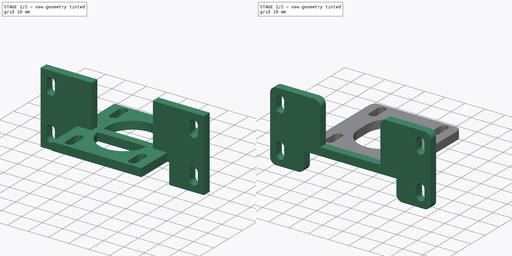
[diagram: build sequence overview — one tinted view per stage of 2, left to right]
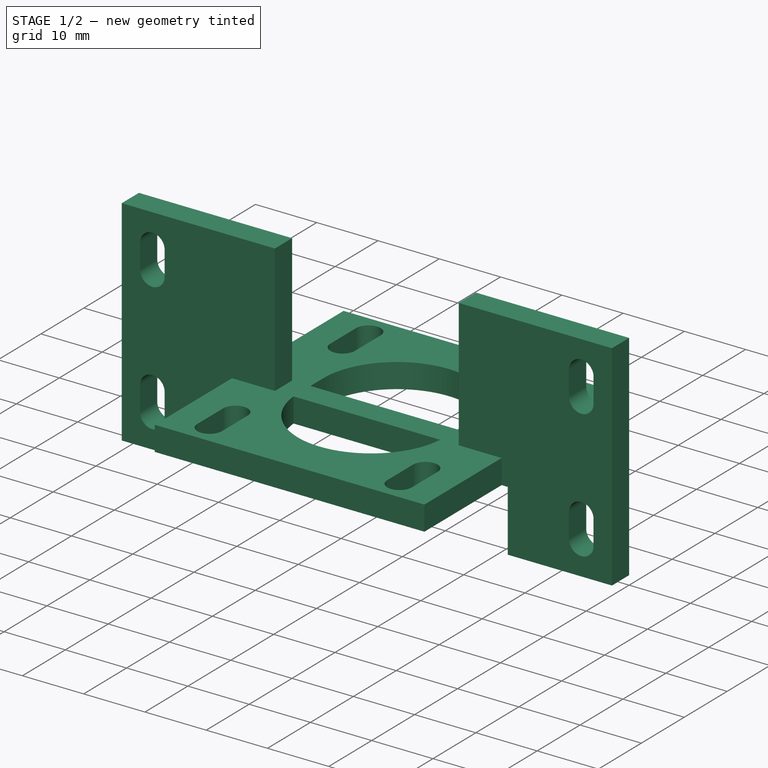
[diagram: stage 1 of 2 — iso view after this stage's code; geometry added in this stage tinted green]
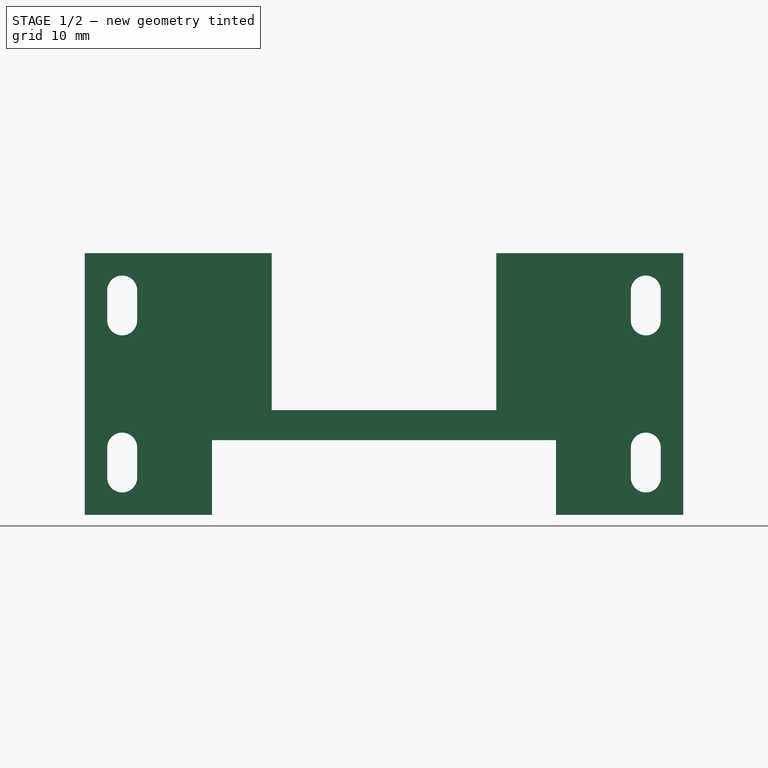
[diagram: stage 1 of 2 — front view after this stage's code; geometry added in this stage tinted green]
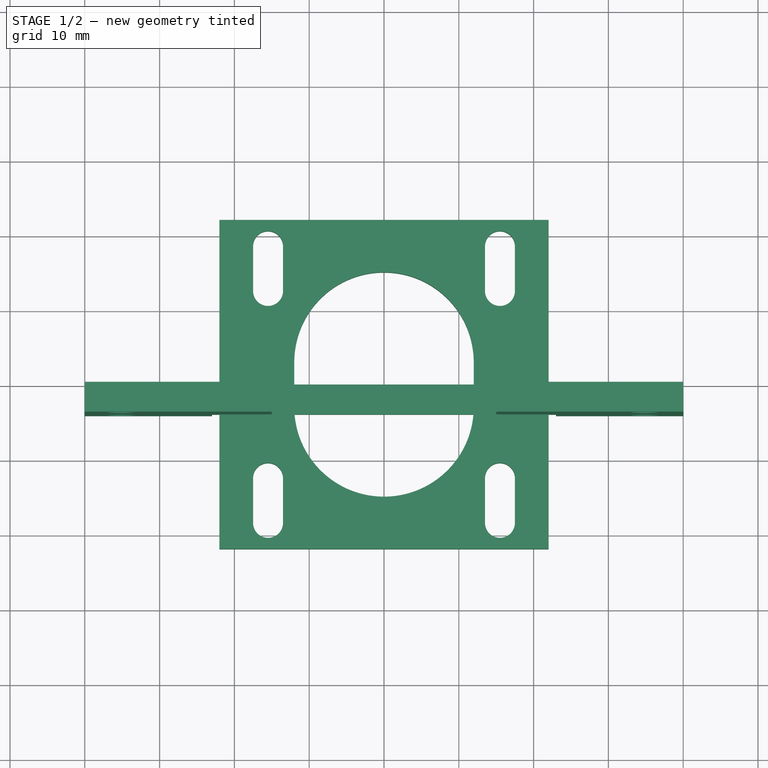
[diagram: stage 1 of 2 — top view after this stage's code; geometry added in this stage tinted green]
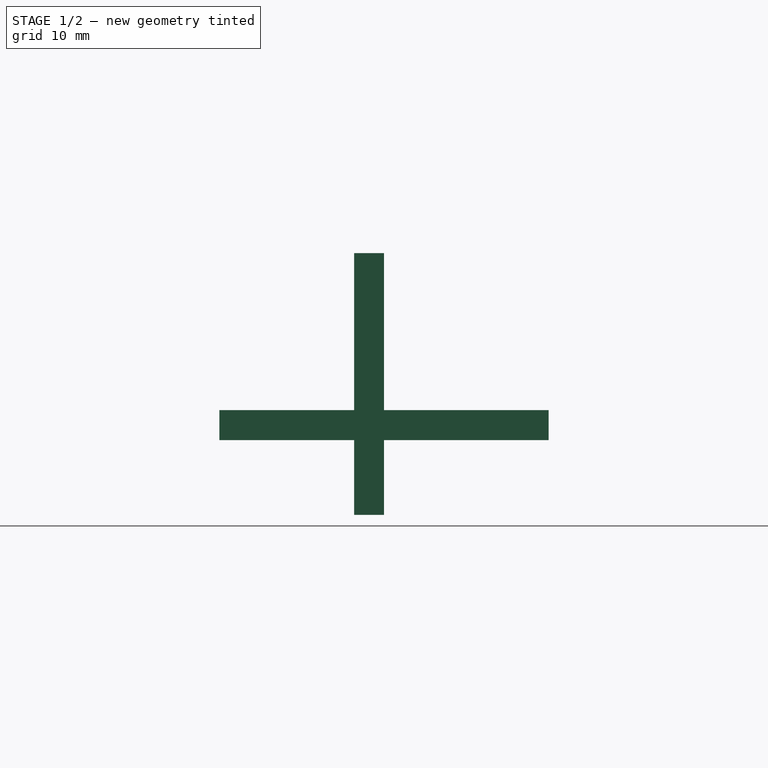
[diagram: stage 1 of 2 — right view after this stage's code; geometry added in this stage tinted green]
FCSTD DOCUMENT  (FreeCAD 0.19R24291 (Git))
Label: MotorFixing
License: All rights reserved
LicenseURL: http://en.wikipedia.org/wiki/All_rights_reserved
objects: Sketcher::SketchObject×2, PartDesign::Pad×2, PartDesign::Body×2, Part::MultiFuse×1, Part::Fillet×1
note: 10 computed .brp shape members not serialized (recipe doc carries the construction recipe); baked Part::Feature solids carry a one-line shape summary decoded from their .brp

FEATURE [Sketcher::SketchObject] Sketch
  FullyConstrained = false
  MapMode = 5
  Support = -> [XY_Plane]
  sketch-geometry (24):
    g0: LineSegment StartX=-22 StartY=22 StartZ=0 EndX=22 EndY=22 EndZ=0
    g1: LineSegment StartX=22 StartY=22 StartZ=0 EndX=22 EndY=-22 EndZ=0
    g2: LineSegment StartX=22 StartY=-22 StartZ=0 EndX=-22 EndY=-22 EndZ=0
    g3: LineSegment StartX=-22 StartY=-22 StartZ=0 EndX=-22 EndY=22 EndZ=0
    g4: ArcOfCircle CenterX=-15.5 CenterY=18.5 CenterZ=0 NormalX=0 NormalY=0 NormalZ=1 AngleXU=0 Radius=2 StartAngle=1e-16 EndAngle=3.14159
    g5: ArcOfCircle CenterX=-15.5 CenterY=12.5 CenterZ=0 NormalX=0 NormalY=0 NormalZ=1 AngleXU=0 Radius=2 StartAngle=3.14159 EndAngle=6.28319
    g6: LineSegment StartX=-17.5 StartY=18.5 StartZ=0 EndX=-17.5 EndY=12.5 EndZ=0
    g7: LineSegment StartX=-13.5 StartY=18.5 StartZ=0 EndX=-13.5 EndY=12.5 EndZ=0
    g8: ArcOfCircle CenterX=-15.5 CenterY=-12.5 CenterZ=0 NormalX=0 NormalY=0 NormalZ=1 AngleXU=0 Radius=2 StartAngle=1e-16 EndAngle=3.14159
    g9: ArcOfCircle CenterX=-15.5 CenterY=-18.5 CenterZ=0 NormalX=0 NormalY=0 NormalZ=1 AngleXU=0 Radius=2 StartAngle=3.14159 EndAngle=6.28319
    g10: LineSegment StartX=-17.5 StartY=-12.5 StartZ=0 EndX=-17.5 EndY=-18.5 EndZ=0
    g11: LineSegment StartX=-13.5 StartY=-12.5 StartZ=0 EndX=-13.5 EndY=-18.5 EndZ=0
    g12: ArcOfCircle CenterX=15.5 CenterY=18.5 CenterZ=0 NormalX=0 NormalY=0 NormalZ=1 AngleXU=0 Radius=2 StartAngle=5e-16 EndAngle=3.14159
    g13: ArcOfCircle CenterX=15.5 CenterY=12.5 CenterZ=0 NormalX=0 NormalY=0 NormalZ=1 AngleXU=0 Radius=2 StartAngle=3.14159 EndAngle=6.28319
    g14: LineSegment StartX=13.5 StartY=18.5 StartZ=0 EndX=13.5 EndY=12.5 EndZ=0
    g15: LineSegment StartX=17.5 StartY=18.5 StartZ=0 EndX=17.5 EndY=12.5 EndZ=0
    g16: ArcOfCircle CenterX=15.5 CenterY=-12.5 CenterZ=0 NormalX=0 NormalY=0 NormalZ=1 AngleXU=0 Radius=2 StartAngle=1e-16 EndAngle=3.14159
    g17: ArcOfCircle CenterX=15.5 CenterY=-18.5 CenterZ=0 NormalX=0 NormalY=0 NormalZ=1 AngleXU=0 Radius=2 StartAngle=3.14159 EndAngle=6.28319
    g18: LineSegment StartX=13.5 StartY=-12.5 StartZ=0 EndX=13.5 EndY=-18.5 EndZ=0
    g19: LineSegment StartX=17.5 StartY=-12.5 StartZ=0 EndX=17.5 EndY=-18.5 EndZ=0
    g20: ArcOfCircle CenterX=0 CenterY=3 CenterZ=0 NormalX=0 NormalY=0 NormalZ=1 AngleXU=0 Radius=12 StartAngle=1e-16 EndAngle=3.14159
    g21: ArcOfCircle CenterX=7e-16 CenterY=-3 CenterZ=0 NormalX=0 NormalY=0 NormalZ=1 AngleXU=0 Radius=12 StartAngle=3.14159 EndAngle=6.28319
    g22: LineSegment StartX=-12 StartY=3 StartZ=0 EndX=-12 EndY=-3 EndZ=0
    g23: LineSegment StartX=12 StartY=3 StartZ=0 EndX=12 EndY=-3 EndZ=0
  constraints (52):
    c: Coincident(g0,g1)
    c: Coincident(g1,g2)
    c: Coincident(g2,g3)
    c: Coincident(g3,g0)
    c: Horizontal(g0)
    c: Horizontal(g2)
    c: Vertical(g1)
    c: Vertical(g3)
    c: Tangent(g4,g7) = 1.5708
    c: Tangent(g4,g6) = -1.5708
    c: Tangent(g6,g5) = -1.5708
    c: Tangent(g7,g5) = 1.5708
    c: Vertical(g6)
    c: Equal(g4,g5)
    c: DistanceX(g4,g4) = 4
    c: DistanceY(g7,g7) = 6
    c: Tangent(g8,g11) = 1.5708
    c: Tangent(g8,g10) = -1.5708
    c: Tangent(g10,g9) = -1.5708
    c: Tangent(g11,g9) = 1.5708
    c: Vertical(g10)
    c: Equal(g8,g9)
    c: Equal(g4,g8) = 4
    c: Equal(g7,g11) = 6
    c: Tangent(g12,g15) = 1.5708
    c: Tangent(g12,g14) = -1.5708
    c: Tangent(g14,g13) = -1.5708
    c: Tangent(g15,g13) = 1.5708
    c: Vertical(g14)
    c: Equal(g12,g13)
    c: Equal(g4,g12) = 4
    c: Equal(g7,g15) = 6
    c: Tangent(g16,g19) = 1.5708
    c: Tangent(g16,g18) = -1.5708
    c: Tangent(g18,g17) = -1.5708
    c: Tangent(g19,g17) = 1.5708
    c: Vertical(g18)
    c: Equal(g16,g17)
    c: Equal(g12,g16) = 4
    c: Equal(g15,g19) = 6
    c: DistanceY(g1,g1) = 44
    c: DistanceX(g0,g0) = 44
    c: Tangent(g20,g23) = 1.5708
    c: Tangent(g20,g22) = -1.5708
    c: Tangent(g22,g21) = -1.5708
    c: Tangent(g23,g21) = 1.5708
    c: Vertical(g22)
    c: Equal(g20,g21)
    c: DistanceY(g23,g23) = 6
    c: DistanceX(g20,g20) = 24
    c: DistanceX(g20,g-1) = 0
    c: DistanceY(g-1,g20) = 3
FEATURE [PartDesign::Pad] Pad
  Direction = (1,1,1)
  Length = 4
  Length2 = 100
  Profile = -> Sketch
  Type = 0
FEATURE [PartDesign::Body] Body
  Group = -> [Sketch,Pad]
  Origin = -> Origin
  Tip = -> Pad
FEATURE [Sketcher::SketchObject] Sketch001
  FullyConstrained = true
  MapMode = 5
  Placement = pos=(0,0,0) rot=(1,0,0;1.5708rad)
  Support = -> [XZ_Plane001]
  expr: Constraints[74] = .Constraints.AbstandLoch
  expr: Constraints[72] = .Constraints.AbstandLoch
  expr: Constraints[65] = .Constraints.AbstandLoch
  expr: Constraints[62] = .Constraints.Radius
  expr: .Constraints.BreiteHinten = (.Constraints.Breite - 46mm) / 2
  expr: Constraints[64] = .Constraints.Radius
  expr: Constraints[35] = .Constraints.BreiteHinten
  expr: Constraints[60] = .Constraints.LängeLoch
  expr: Constraints[73] = .Constraints.AbstandLoch
  expr: Constraints[59] = .Constraints.LängeLoch
  expr: Constraints[33] = .Constraints.LängeHinten
  expr: Constraints[71] = .Constraints.AbstandLoch
  expr: Constraints[63] = .Constraints.Radius
  expr: Constraints[61] = .Constraints.LängeLoch
  expr: Constraints[31] = .Constraints.LängeSteg
  expr: Constraints[17] = .Constraints.Steg
  expr: Constraints[70] = .Constraints.AbstandLoch
  expr: Constraints[75] = .Constraints.AbstandLoch
  expr: Constraints[14] = .Constraints.Breite / 2
  sketch-geometry (28):
    g0: LineSegment StartX=40 StartY=-10 StartZ=0 EndX=40 EndY=25 EndZ=0
    g1: LineSegment StartX=40 StartY=25 StartZ=0 EndX=15 EndY=25 EndZ=0
    g2: LineSegment StartX=15 StartY=25 StartZ=0 EndX=15 EndY=4 EndZ=0
    g3: LineSegment StartX=15 StartY=4 StartZ=0 EndX=-15 EndY=4 EndZ=0
    g4: LineSegment StartX=-15 StartY=4 StartZ=0 EndX=-15 EndY=25 EndZ=0
    g5: LineSegment StartX=-15 StartY=25 StartZ=0 EndX=-40 EndY=25 EndZ=0
    g6: LineSegment StartX=-40 StartY=25 StartZ=0 EndX=-40 EndY=-10 EndZ=0
    g7: LineSegment StartX=-40 StartY=-10 StartZ=0 EndX=-23 EndY=-10 EndZ=0
    g8: LineSegment StartX=-23 StartY=-10 StartZ=0 EndX=-23 EndY=0 EndZ=0
    g9: LineSegment StartX=-23 StartY=0 StartZ=0 EndX=23 EndY=0 EndZ=0
    g10: LineSegment StartX=23 StartY=0 StartZ=0 EndX=23 EndY=-10 EndZ=0
    g11: LineSegment StartX=23 StartY=-10 StartZ=0 EndX=40 EndY=-10 EndZ=0
    g12: ArcOfCircle CenterX=-35 CenterY=20 CenterZ=0 NormalX=0 NormalY=0 NormalZ=1 AngleXU=0 Radius=2 StartAngle=-9e-16 EndAngle=3.14159
    g13: ArcOfCircle CenterX=-35 CenterY=16 CenterZ=0 NormalX=0 NormalY=0 NormalZ=1 AngleXU=0 Radius=2 StartAngle=3.14159 EndAngle=6.28319
    g14: LineSegment StartX=-37 StartY=20 StartZ=0 EndX=-37 EndY=16 EndZ=0
    g15: LineSegment StartX=-33 StartY=20 StartZ=0 EndX=-33 EndY=16 EndZ=0
    g16: ArcOfCircle CenterX=-35 CenterY=-1 CenterZ=0 NormalX=0 NormalY=0 NormalZ=1 AngleXU=0 Radius=2 StartAngle=1e-16 EndAngle=3.14159
    g17: ArcOfCircle CenterX=-35 CenterY=-5 CenterZ=0 NormalX=0 NormalY=0 NormalZ=1 AngleXU=0 Radius=2 StartAngle=3.14159 EndAngle=6.28319
    g18: LineSegment StartX=-37 StartY=-1 StartZ=0 EndX=-37 EndY=-5 EndZ=0
    g19: LineSegment StartX=-33 StartY=-1 StartZ=0 EndX=-33 EndY=-5 EndZ=0
    g20: ArcOfCircle CenterX=35 CenterY=20 CenterZ=0 NormalX=0 NormalY=0 NormalZ=1 AngleXU=0 Radius=2 StartAngle=-1.33e-14 EndAngle=3.14159
    g21: ArcOfCircle CenterX=35 CenterY=16 CenterZ=0 NormalX=0 NormalY=0 NormalZ=1 AngleXU=0 Radius=2 StartAngle=3.14159 EndAngle=6.28319
    g22: LineSegment StartX=33 StartY=20 StartZ=0 EndX=33 EndY=16 EndZ=0
    g23: LineSegment StartX=37 StartY=20 StartZ=0 EndX=37 EndY=16 EndZ=0
    g24: ArcOfCircle CenterX=35 CenterY=-1 CenterZ=0 NormalX=0 NormalY=0 NormalZ=1 AngleXU=0 Radius=2 StartAngle=1e-16 EndAngle=3.14159
    g25: ArcOfCircle CenterX=35 CenterY=-5 CenterZ=0 NormalX=0 NormalY=0 NormalZ=1 AngleXU=0 Radius=2 StartAngle=3.14159 EndAngle=6.28319
    g26: LineSegment StartX=33 StartY=-1 StartZ=0 EndX=33 EndY=-5 EndZ=0
    g27: LineSegment StartX=37 StartY=-1 StartZ=0 EndX=37 EndY=-5 EndZ=0
  constraints (76):
    c: Vertical(g0)
    c: Coincident(g0,g1)
    c: Horizontal(g1)
    c: Coincident(g1,g2)
    c: Vertical(g2)
    c: Coincident(g2,g3)
    c: Horizontal(g3)
    c: Coincident(g3,g4)
    c: Vertical(g4)
    c: Coincident(g4,g5)
    c: Horizontal(g5)
    c: Coincident(g5,g6)
    c: Vertical(g6)
    c: DistanceX(g6,g0) = 80  'Breite'
    c: DistanceX(g6,g-1) = 40
    c: DistanceY(g-1,g2) = 4
    c: DistanceX(g1,g1) = 25  'Steg'
    c: DistanceX(g5,g5) = 25
    c: Coincident(g6,g7)
    c: Horizontal(g7)
    c: Coincident(g7,g8)
    c: PointOnObject(g8,g-1)
    c: Vertical(g8)
    c: Coincident(g8,g9)
    c: Horizontal(g9)
    c: Coincident(g9,g10)
    c: Vertical(g10)
    c: Coincident(g10,g11)
    c: Coincident(g11,g0)
    c: Horizontal(g11)
    c: DistanceY(g9,g0) = 25  'LängeSteg'
    c: DistanceY(g-1,g5) = 25
    c: DistanceY(g10,g10) = 10  'LängeHinten'
    c: DistanceY(g8,g8) = 10
    c: DistanceX(g11,g11) = 17  'BreiteHinten'
    c: DistanceX(g7,g7) = 17
    c: Tangent(g12,g15) = 1.5708
    c: Tangent(g12,g14) = -1.5708
    c: Tangent(g14,g13) = -1.5708
    c: Tangent(g15,g13) = 1.5708
    c: Vertical(g14)
    c: Radius(g12) = 2  'Radius'
    c: DistanceY(g15,g15) = 4  'LängeLoch'
    c: DistanceX(g5,g12) = 5  'AbstandLoch'
    c: Tangent(g16,g19) = 1.5708
    c: Tangent(g16,g18) = -1.5708
    c: Tangent(g18,g17) = -1.5708
    c: Tangent(g19,g17) = 1.5708
    c: Vertical(g18)
    c: Tangent(g20,g23) = 1.5708
    c: Tangent(g20,g22) = -1.5708
    c: Tangent(g22,g21) = -1.5708
    c: Tangent(g23,g21) = 1.5708
    c: Vertical(g22)
    c: Tangent(g24,g27) = 1.5708
    c: Tangent(g24,g26) = -1.5708
    c: Tangent(g26,g25) = -1.5708
    c: Tangent(g27,g25) = 1.5708
    c: Vertical(g26)
    c: DistanceY(g18,g18) = 4
    c: DistanceY(g26,g26) = 4
    c: DistanceY(g22,g22) = 4
    c: Radius(g20) = 2
    c: Radius(g24) = 2
    c: Radius(g16) = 2
    c: DistanceX(g6,g16) = 5
    c: Vertical(g27)
    c: Vertical(g19)
    c: Vertical(g15)
    c: Vertical(g23)
    c: DistanceX(g25,g0) = 5
    c: DistanceX(g20,g0) = 5
    c: DistanceY(g12,g5) = 5
    c: DistanceY(g6,g17) = 5
    c: DistanceY(g0,g25) = 5
    c: DistanceY(g20,g0) = 5
FEATURE [PartDesign::Pad] Pad001
  Direction = (1,1,1)
  Length = 4
  Length2 = 100
  Placement = pos=(0,0,0) rot=(1,0,0;1.5708rad)
  Profile = -> Sketch001
  Type = 0
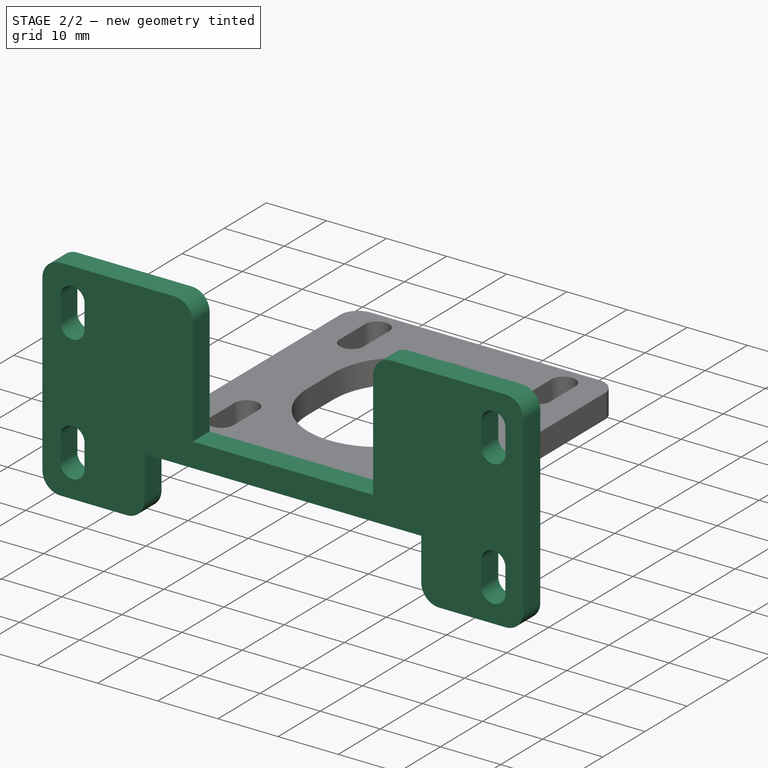
[diagram: stage 2 of 2 — iso view after this stage's code; geometry added in this stage tinted green]
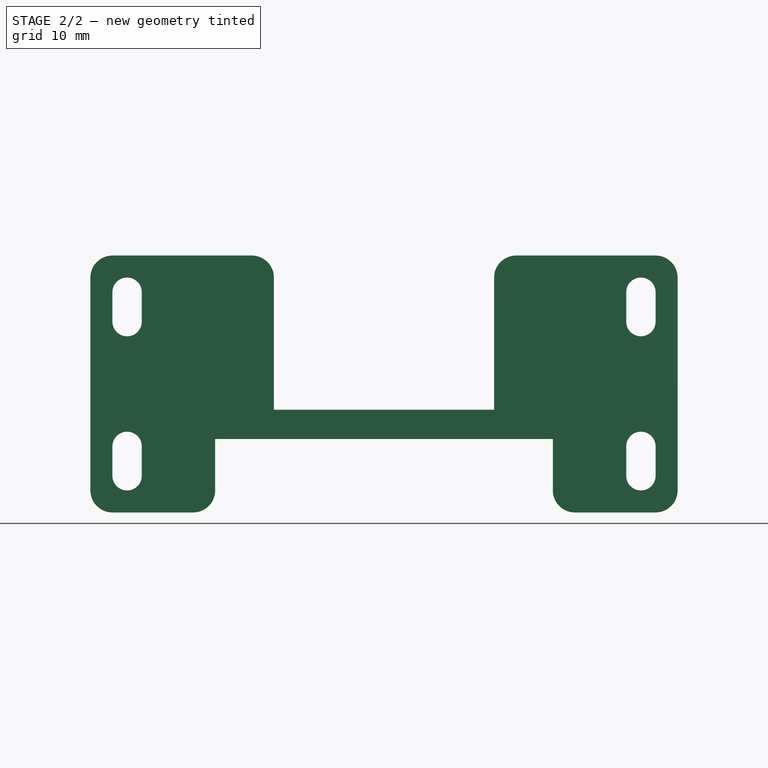
[diagram: stage 2 of 2 — front view after this stage's code; geometry added in this stage tinted green]
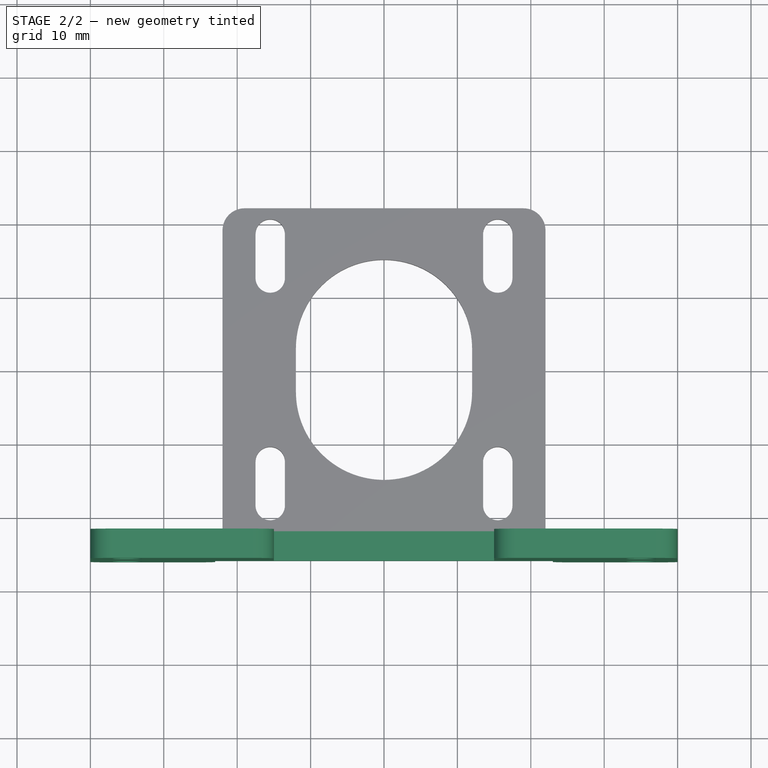
[diagram: stage 2 of 2 — top view after this stage's code; geometry added in this stage tinted green]
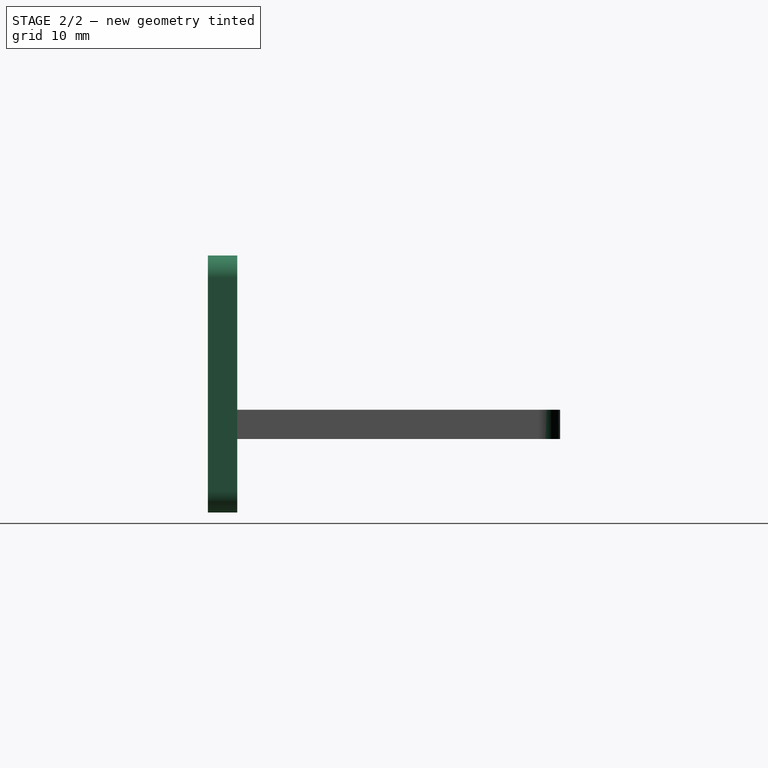
[diagram: stage 2 of 2 — right view after this stage's code; geometry added in this stage tinted green]
FEATURE [PartDesign::Body] Body001
  Group = -> [Sketch001,Pad001]
  Origin = -> Origin001
  Placement = pos=(0,-22,0) rot=(0,0,1;0rad)
  Tip = -> Pad001
FEATURE [Part::MultiFuse] Fusion001
  Shapes = -> [Body,Body001]
FEATURE [Part::Fillet] Fillet
  Base = -> Fusion001
  Edges = 10 edges r=3: [Edge1,Edge2,Edge109,Edge111,Edge113,Edge115,Edge134,Edge135,Edge138,Edge140]
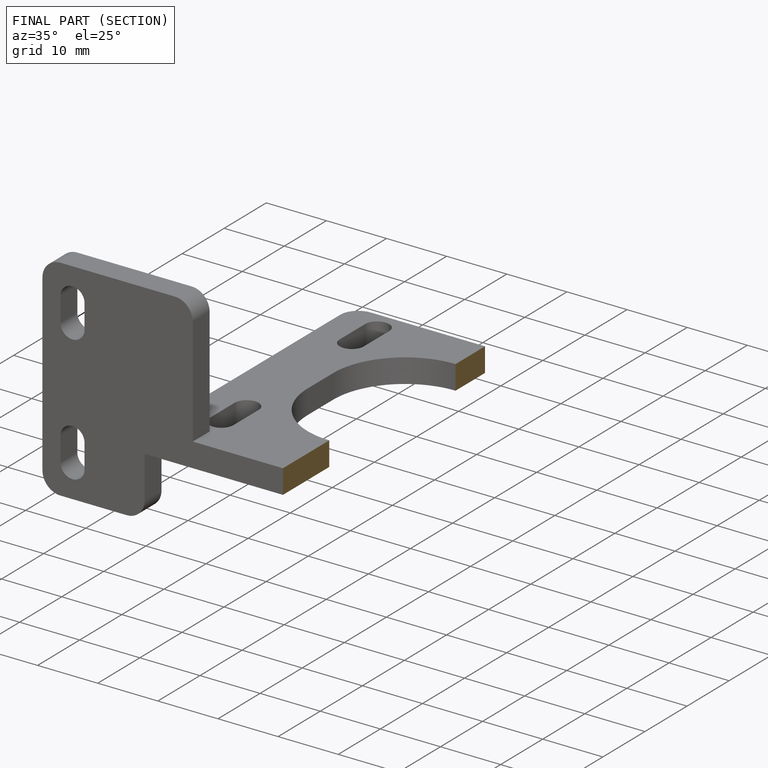
[diagram: finished part — half-section view (interior)]
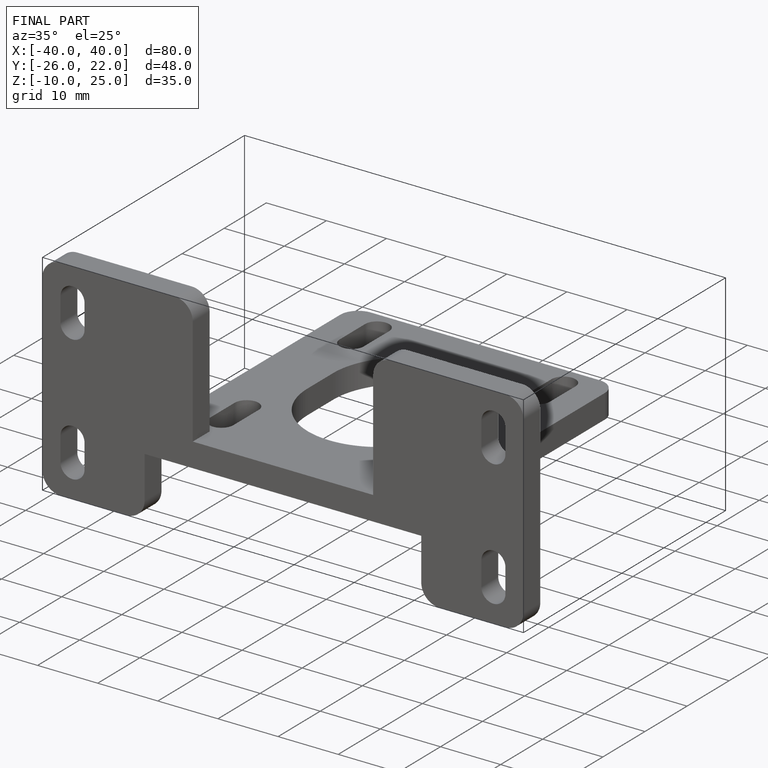
[diagram: finished part — iso view with bounding-box wireframe]
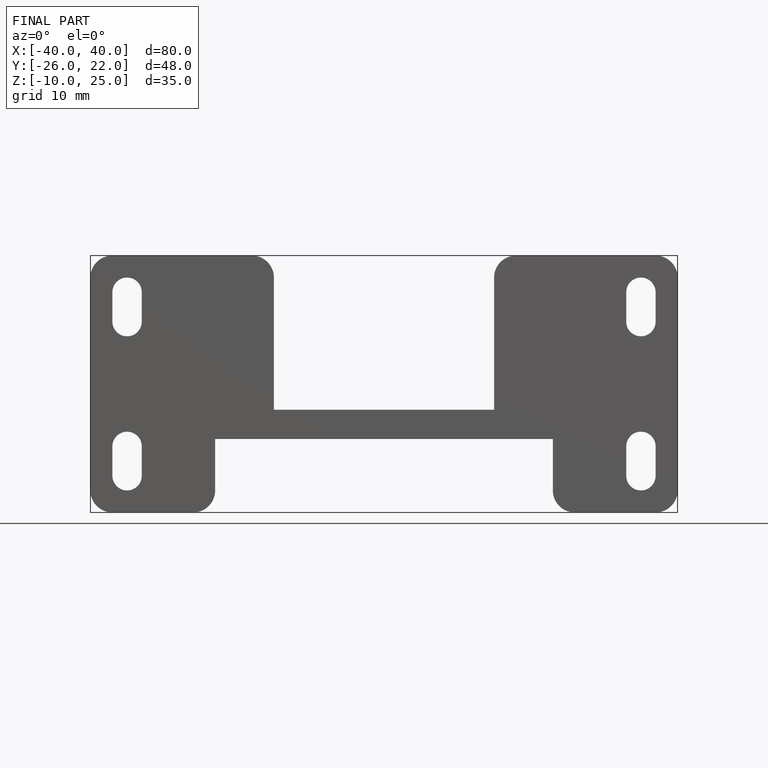
[diagram: finished part — front view with bounding-box wireframe]
